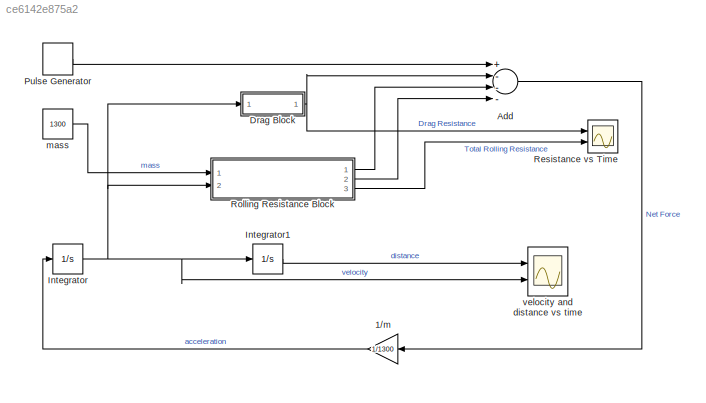
MODEL slx_ce6142e875a2
KIND model
CONFIG AbsTol = auto
CONFIG EnableMultiTasking = off
CONFIG FixedStep = auto
CONFIG MaxStep = auto
CONFIG MinStep = auto
CONFIG RelTol = 1e-3
CONFIG SampleTimeConstraint = Unconstrained
CONFIG Solver = VariableStepAuto
CONFIG SolverName = VariableStepAuto
CONFIG StartTime = 0.0
CONFIG StopTime = 10.0
BLOCK [Gain] 1//m
  Gain = 1/1300
  OutDataTypeStr = Inherit: Inherit via internal rule
  ParamDataTypeStr = Inherit: Inherit via internal rule
  SaturateOnIntegerOverflow = off
BLOCK [Sum] Add
  InputSameDT = off
  Inputs = +---
  OutDataTypeStr = Inherit: Inherit via internal rule
  Ports = [4, 1]
  SaturateOnIntegerOverflow = off
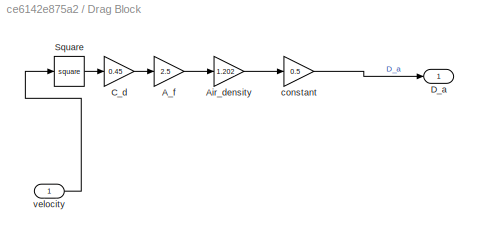
BLOCK [SubSystem] Drag Block
  Ports = [1, 1]
  RequestExecContextInheritance = off
BLOCK [Gain] Drag Block/A_f
  Gain = 2.5
  OutDataTypeStr = Inherit: Inherit via internal rule
  ParamDataTypeStr = Inherit: Inherit via internal rule
  SaturateOnIntegerOverflow = off
BLOCK [Gain] Drag Block/Air_density
  Gain = 1.202
  OutDataTypeStr = Inherit: Inherit via internal rule
  ParamDataTypeStr = Inherit: Inherit via internal rule
  SaturateOnIntegerOverflow = off
BLOCK [Gain] Drag Block/C_d
  Gain = 0.45
  OutDataTypeStr = Inherit: Inherit via internal rule
  ParamDataTypeStr = Inherit: Inherit via internal rule
  SaturateOnIntegerOverflow = off
BLOCK [Outport] Drag Block/D_a
  IconDisplay = Port number
BLOCK [Math] Drag Block/Square
  Operator = square
  Ports = [1, 1]
  SignedPower = off
BLOCK [Gain] Drag Block/constant
  Gain = 0.5
  OutDataTypeStr = Inherit: Inherit via internal rule
  ParamDataTypeStr = Inherit: Inherit via internal rule
  SaturateOnIntegerOverflow = off
BLOCK [Inport] Drag Block/velocity
  IconDisplay = Port number
BLOCK [Integrator] Integrator
  Ports = [1, 1]
BLOCK [Integrator] Integrator1
  Ports = [1, 1]
BLOCK [DiscretePulseGenerator] Pulse Generator
  Amplitude = 1500
  Ports = [0, 1]
  PulseType = Time based
  PulseWidth = 30
BLOCK [Scope] Resistance vs Time
  Floating = off
  NumInputPorts = 2
  Ports = [2]
  ScopeSpecificationString = Simulink.scopes.TimeScopeBlockCfg('CurrentConfiguration', extmgr.ConfigurationSet(extmgr.Configuration('Core','General UI',true),extmgr.Configuration('Core','Source UI',true),extmgr.Configuration('Sources','WiredSimulink',true,'DataLoggingVariableName','ScopeData1'),extmgr.Configuration('Visuals','Time Domain',true,'SerializedDisplays',{struct('MinYLimReal','-22.29931','MaxYLimReal','200.69378','Y...<+1438ch>
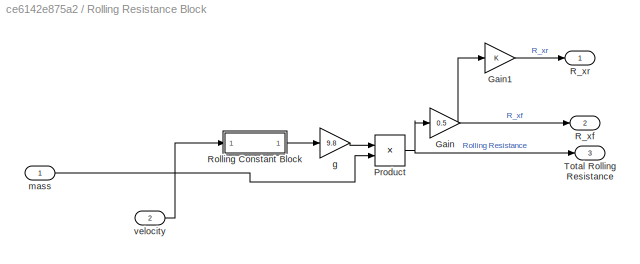
BLOCK [SubSystem] Rolling Resistance Block
  Ports = [2, 3]
  RequestExecContextInheritance = off
BLOCK [Gain] Rolling Resistance Block/Gain
  Gain = 0.5
  OutDataTypeStr = Inherit: Inherit via internal rule
  ParamDataTypeStr = Inherit: Inherit via internal rule
  SaturateOnIntegerOverflow = off
BLOCK [Gain] Rolling Resistance Block/Gain1
  OutDataTypeStr = Inherit: Inherit via internal rule
  ParamDataTypeStr = Inherit: Inherit via internal rule
  SaturateOnIntegerOverflow = off
BLOCK [Product] Rolling Resistance Block/Product
  InputSameDT = off
  OutDataTypeStr = Inherit: Inherit via internal rule
  Ports = [2, 1]
  RndMeth = Floor
  SaturateOnIntegerOverflow = off
BLOCK [Outport] Rolling Resistance Block/R_xf
  IconDisplay = Port number
  Port = 2
BLOCK [Outport] Rolling Resistance Block/R_xr
  IconDisplay = Port number
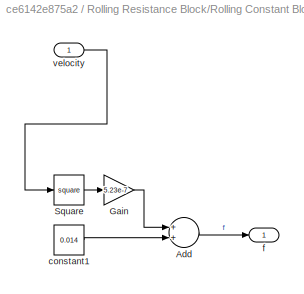
BLOCK [SubSystem] Rolling Resistance Block/Rolling Constant Block
  Ports = [1, 1]
  RequestExecContextInheritance = off
BLOCK [Sum] Rolling Resistance Block/Rolling Constant Block/Add
  InputSameDT = off
  OutDataTypeStr = Inherit: Inherit via internal rule
  Ports = [2, 1]
  SaturateOnIntegerOverflow = off
BLOCK [Gain] Rolling Resistance Block/Rolling Constant Block/Gain
  Gain = 5.23e-7
  OutDataTypeStr = Inherit: Inherit via internal rule
  ParamDataTypeStr = Inherit: Inherit via internal rule
  SaturateOnIntegerOverflow = off
BLOCK [Math] Rolling Resistance Block/Rolling Constant Block/Square
  Operator = square
  Ports = [1, 1]
  SignedPower = off
BLOCK [Constant] Rolling Resistance Block/Rolling Constant Block/constant1
  Value = 0.014
BLOCK [Outport] Rolling Resistance Block/Rolling Constant Block/f
  IconDisplay = Port number
BLOCK [Inport] Rolling Resistance Block/Rolling Constant Block/velocity
  IconDisplay = Port number
BLOCK [Outport] Rolling Resistance Block/Total Rolling Resistance
  IconDisplay = Port number
  Port = 3
BLOCK [Gain] Rolling Resistance Block/g
  Gain = 9.8
  OutDataTypeStr = Inherit: Inherit via internal rule
  ParamDataTypeStr = Inherit: Inherit via internal rule
  SaturateOnIntegerOverflow = off
BLOCK [Inport] Rolling Resistance Block/mass
  IconDisplay = Port number
BLOCK [Inport] Rolling Resistance Block/velocity
  IconDisplay = Port number
  Port = 2
BLOCK [Constant] mass
  Value = 1300
BLOCK [Scope] velocity and distance vs time
  Floating = off
  NumInputPorts = 2
  Ports = [2]
  ScopeSpecificationString = Simulink.scopes.TimeScopeBlockCfg('CurrentConfiguration', extmgr.ConfigurationSet(extmgr.Configuration('Core','General UI',true),extmgr.Configuration('Core','Source UI',true),extmgr.Configuration('Sources','WiredSimulink',true),extmgr.Configuration('Visuals','Time Domain',true,'SerializedDisplays',{struct('MinYLimReal','-1.60509','MaxYLimReal','14.44578','YLabelReal','','MinYLimMag','0.00000','Max...<+1370ch>
LINE 1//m:1 -> Integrator:1
LINE Add:1 -> 1//m:1
LINE Drag Block/A_f:1 -> Drag Block/Air_density:1
LINE Drag Block/Air_density:1 -> Drag Block/constant:1
LINE Drag Block/C_d:1 -> Drag Block/A_f:1
LINE Drag Block/Square:1 -> Drag Block/C_d:1
LINE Drag Block/constant:1 -> Drag Block/D_a:1
LINE Drag Block/velocity:1 -> Drag Block/Square:1
NET Drag Block:1 -> Add:2, Resistance vs Time:1
LINE Integrator1:1 -> velocity and distance vs time:1
NET Integrator:1 -> Drag Block:1, Integrator1:1, Rolling Resistance Block:2, velocity and distance vs time:2
LINE Pulse Generator:1 -> Add:1
LINE Rolling Resistance Block/Gain1:1 -> Rolling Resistance Block/R_xr:1
NET Rolling Resistance Block/Gain:1 -> Rolling Resistance Block/Gain1:1, Rolling Resistance Block/R_xf:1
NET Rolling Resistance Block/Product:1 -> Rolling Resistance Block/Gain:1, Rolling Resistance Block/Total Rolling Resistance:1
LINE Rolling Resistance Block/Rolling Constant Block/Add:1 -> Rolling Resistance Block/Rolling Constant Block/f:1
LINE Rolling Resistance Block/Rolling Constant Block/Gain:1 -> Rolling Resistance Block/Rolling Constant Block/Add:1
LINE Rolling Resistance Block/Rolling Constant Block/Square:1 -> Rolling Resistance Block/Rolling Constant Block/Gain:1
LINE Rolling Resistance Block/Rolling Constant Block/constant1:1 -> Rolling Resistance Block/Rolling Constant Block/Add:2
LINE Rolling Resistance Block/Rolling Constant Block/velocity:1 -> Rolling Resistance Block/Rolling Constant Block/Square:1
LINE Rolling Resistance Block/Rolling Constant Block:1 -> Rolling Resistance Block/g:1
LINE Rolling Resistance Block/g:1 -> Rolling Resistance Block/Product:1
LINE Rolling Resistance Block/mass:1 -> Rolling Resistance Block/Product:2
LINE Rolling Resistance Block/velocity:1 -> Rolling Resistance Block/Rolling Constant Block:1
LINE Rolling Resistance Block:1 -> Add:3
LINE Rolling Resistance Block:2 -> Add:4
LINE Rolling Resistance Block:3 -> Resistance vs Time:2
LINE mass:1 -> Rolling Resistance Block:1
note: NET lines group one-source signal fan-out (src -> all destinations, sorted); 1:1 wires keep LINE
